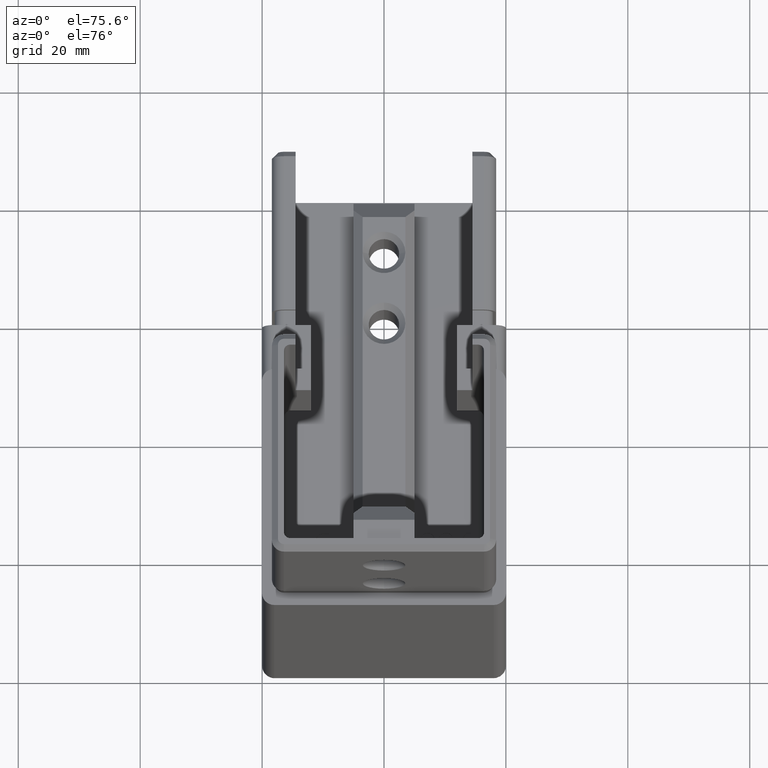
[diagram: clean part render]
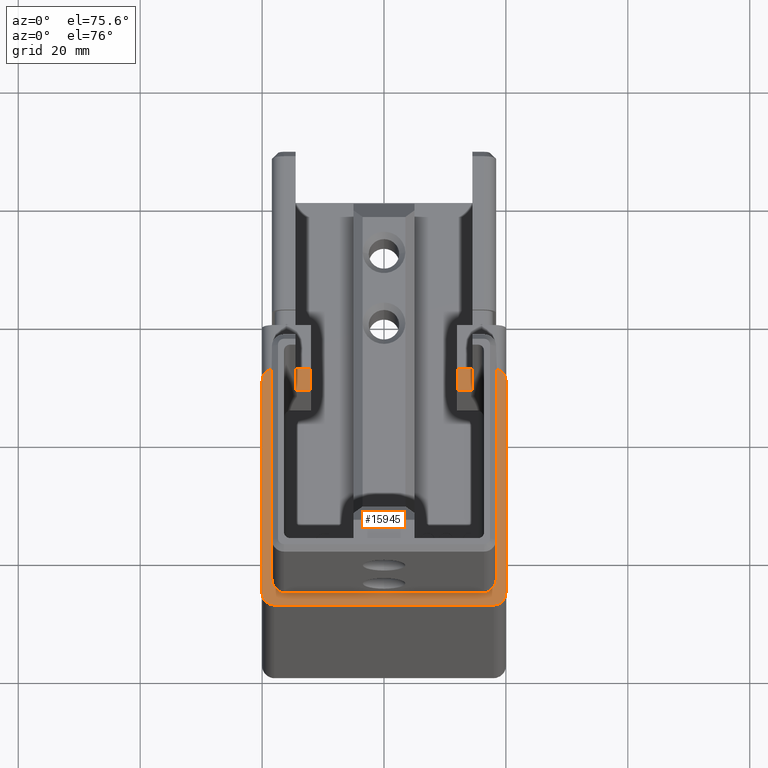
[diagram: same view with one face highlighted and labeled with its STEP entity id]
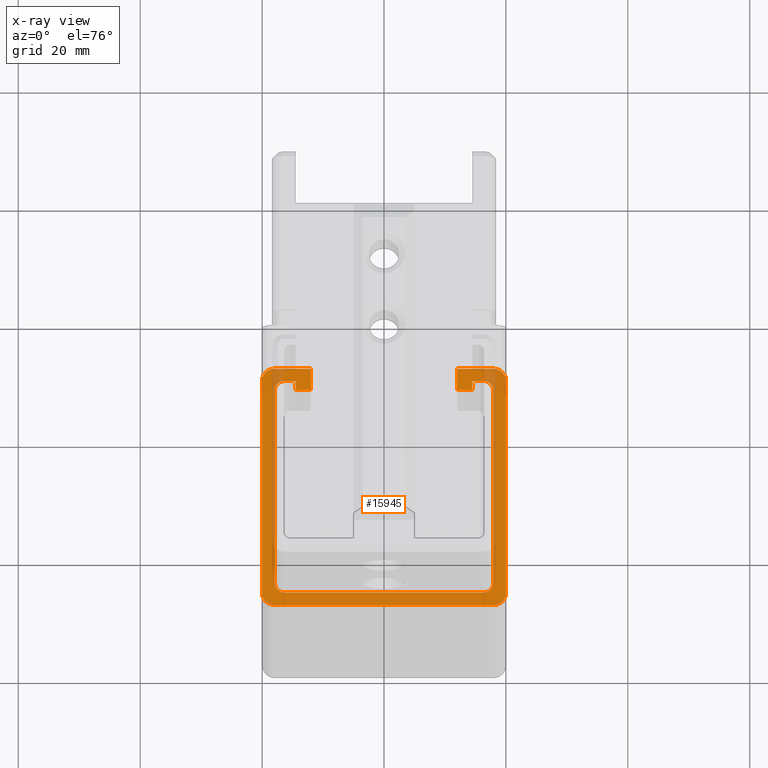
[diagram: x-ray of the same camera — body ghosted, the highlighted face saturated]
A machine part, auxiliary view. The second image highlights one B-rep face of the part: STEP entity #15945.
The next image is the same camera in x-ray: the body ghosted, the highlighted face saturated — about 15% of this face is hidden behind the body in this view.
In plain terms, the highlighted planar face has unit normal (0, 0, 1).
Its self-contained STEP definition (entity closure, byte-faithful):
#121 = VERTEX_POINT ( 'NONE', #9870 ) ;
#186 = EDGE_CURVE ( 'NONE', #2259, #2257, #16872, .T. ) ;
#294 = CARTESIAN_POINT ( 'NONE',  ( 12.00000000000000000, 36.40000000000000568, 50.00000000000000000 ) ) ;
#299 = CARTESIAN_POINT ( 'NONE',  ( 16.39999999999999147, 2.099999999999990763, 50.00000000000000000 ) ) ;
#374 = DIRECTION ( 'NONE',  ( -1.057758217059029101E-16, 1.000000000000000000, -0.000000000000000000 ) ) ;
#417 = CIRCLE ( 'NONE', #15226, 1.500000000000001332 ) ;
#445 = CIRCLE ( 'NONE', #5478, 1.499999999999999112 ) ;
#559 = VERTEX_POINT ( 'NONE', #5043 ) ;
#603 = AXIS2_PLACEMENT_3D ( 'NONE', #16903, #12175, #16712 ) ;
#1181 = LINE ( 'NONE', #3167, #16879 ) ;
#1207 = EDGE_CURVE ( 'NONE', #4398, #121, #19279, .T. ) ;
#1214 = EDGE_CURVE ( 'NONE', #9338, #19406, #18059, .T. ) ;
#1235 = EDGE_LOOP ( 'NONE', ( #16988, #9040, #5881, #14788, #17346, #7116, #2691, #18734, #4999, #9705, #18203, #16992, #19858, #20315, #11923, #16384, #20126, #4720, #19356, #19118, #4527, #13531, #3635, #9872 ) ) ;
#1861 = VECTOR ( 'NONE', #18818, 1000.000000000000000 ) ;
#1947 = EDGE_CURVE ( 'NONE', #14661, #18998, #16838, .T. ) ;
#2026 = LINE ( 'NONE', #14689, #12054 ) ;
#2148 = VECTOR ( 'NONE', #14569, 1000.000000000000000 ) ;
#2165 = CARTESIAN_POINT ( 'NONE',  ( -16.39999999999998437, 2.099999999999985434, 50.00000000000000000 ) ) ;
#2169 = VECTOR ( 'NONE', #15278, 1000.000000000000000 ) ;
#2257 = VERTEX_POINT ( 'NONE', #6339 ) ;
#2259 = VERTEX_POINT ( 'NONE', #9778 ) ;
#2313 = VERTEX_POINT ( 'NONE', #294 ) ;
#2352 = LINE ( 'NONE', #8226, #12637 ) ;
#2426 = DIRECTION ( 'NONE',  ( -1.000000000000000000, 0.000000000000000000, 0.000000000000000000 ) ) ;
#2561 = CARTESIAN_POINT ( 'NONE',  ( 18.00000000000000711, 1.999999999999995781, 50.00000000000000000 ) ) ;
#2691 = ORIENTED_EDGE ( 'NONE', *, *, #17429, .T. ) ;
#2731 = CARTESIAN_POINT ( 'NONE',  ( -16.40000000000000568, 37.89999999999999147, 50.00000000000000000 ) ) ;
#2779 = CARTESIAN_POINT ( 'NONE',  ( -20.00000000000000711, 1.999999999999995781, 50.00000000000000000 ) ) ;
#2873 = LINE ( 'NONE', #9060, #1861 ) ;
#3167 = CARTESIAN_POINT ( 'NONE',  ( 14.49999999999999822, 38.39999999999999147, 50.00000000000000000 ) ) ;
#3292 = EDGE_CURVE ( 'NONE', #16142, #559, #9715, .T. ) ;
#3534 = VERTEX_POINT ( 'NONE', #9532 ) ;
#3555 = PLANE ( 'NONE',  #17592 ) ;
#3613 = DIRECTION ( 'NONE',  ( -1.000000000000000000, -1.586637325588544144E-16, -0.000000000000000000 ) ) ;
#3635 = ORIENTED_EDGE ( 'NONE', *, *, #9099, .T. ) ;
#3665 = CARTESIAN_POINT ( 'NONE',  ( -18.00000000000000711, 1.999999999999995781, 50.00000000000000000 ) ) ;
#3800 = VERTEX_POINT ( 'NONE', #14504 ) ;
#3971 = CARTESIAN_POINT ( 'NONE',  ( 0.000000000000000000, 37.89999999999999147, 50.00000000000000000 ) ) ;
#3982 = CARTESIAN_POINT ( 'NONE',  ( 18.00000000000000711, -1.089372355467298638E-14, 50.00000000000000000 ) ) ;
#4051 = DIRECTION ( 'NONE',  ( -1.000000000000000000, 0.000000000000000000, 0.000000000000000000 ) ) ;
#4123 = DIRECTION ( 'NONE',  ( 1.000000000000000000, 0.000000000000000000, 0.000000000000000000 ) ) ;
#4273 = CARTESIAN_POINT ( 'NONE',  ( 12.00000000000000000, 40.00000000000000711, 50.00000000000000000 ) ) ;
#4282 = CARTESIAN_POINT ( 'NONE',  ( -20.00000000000000355, 1.999999999999995781, 50.00000000000000000 ) ) ;
#4398 = VERTEX_POINT ( 'NONE', #15311 ) ;
#4527 = ORIENTED_EDGE ( 'NONE', *, *, #1207, .T. ) ;
#4573 = VERTEX_POINT ( 'NONE', #6482 ) ;
#4582 = CARTESIAN_POINT ( 'NONE',  ( 12.00000000000000000, 40.00000000000000711, 50.00000000000000000 ) ) ;
#4591 = DIRECTION ( 'NONE',  ( 8.673617379884058152E-16, -1.000000000000000000, 0.000000000000000000 ) ) ;
#4611 = CARTESIAN_POINT ( 'NONE',  ( 17.90000000000000568, 36.39999999999999147, 50.00000000000000000 ) ) ;
#4720 = ORIENTED_EDGE ( 'NONE', *, *, #17054, .T. ) ;
#4861 = VECTOR ( 'NONE', #19914, 1000.000000000000000 ) ;
#4906 = FACE_OUTER_BOUND ( 'NONE', #1235, .T. ) ;
#4999 = ORIENTED_EDGE ( 'NONE', *, *, #13468, .T. ) ;
#5024 = DIRECTION ( 'NONE',  ( 0.000000000000000000, 0.000000000000000000, 1.000000000000000000 ) ) ;
#5043 = CARTESIAN_POINT ( 'NONE',  ( -18.00000000000000711, -1.089372355467298638E-14, 50.00000000000000000 ) ) ;
#5056 = CARTESIAN_POINT ( 'NONE',  ( 15.40000000000000036, 35.39999999999999858, 50.00000000000000000 ) ) ;
#5061 = CARTESIAN_POINT ( 'NONE',  ( -16.40000000000000568, 36.39999999999999147, 50.00000000000000000 ) ) ;
#5106 = LINE ( 'NONE', #299, #17107 ) ;
#5151 = CIRCLE ( 'NONE', #18418, 2.000000000000001776 ) ;
#5314 = EDGE_CURVE ( 'NONE', #8219, #9338, #19003, .T. ) ;
#5354 = LINE ( 'NONE', #12925, #2148 ) ;
#5478 = AXIS2_PLACEMENT_3D ( 'NONE', #13443, #14686, #14894 ) ;
#5765 = DIRECTION ( 'NONE',  ( -9.637352644315591545E-17, 1.000000000000000000, 0.000000000000000000 ) ) ;
#5803 = AXIS2_PLACEMENT_3D ( 'NONE', #10852, #15292, #9074 ) ;
#5881 = ORIENTED_EDGE ( 'NONE', *, *, #1214, .T. ) ;
#5906 = DIRECTION ( 'NONE',  ( -1.000000000000000000, 0.000000000000000000, -0.000000000000000000 ) ) ;
#5938 = CARTESIAN_POINT ( 'NONE',  ( 17.90000000000000568, 3.600000000000005862, 50.00000000000000000 ) ) ;
#5963 = CARTESIAN_POINT ( 'NONE',  ( -18.00000000000000355, 40.00000000000000711, 50.00000000000000000 ) ) ;
#6322 = CIRCLE ( 'NONE', #5803, 1.500000000000001332 ) ;
#6339 = CARTESIAN_POINT ( 'NONE',  ( -20.00000000000000000, 38.00000000000000711, 50.00000000000000000 ) ) ;
#6343 = LINE ( 'NONE', #18285, #2169 ) ;
#6482 = CARTESIAN_POINT ( 'NONE',  ( 18.00000000000000711, -6.938893903907228378E-15, 50.00000000000000000 ) ) ;
#7116 = ORIENTED_EDGE ( 'NONE', *, *, #13905, .T. ) ;
#7294 = VECTOR ( 'NONE', #374, 1000.000000000000000 ) ;
#7983 = VERTEX_POINT ( 'NONE', #8956 ) ;
#8098 = AXIS2_PLACEMENT_3D ( 'NONE', #15123, #8777, #4123 ) ;
#8173 = DIRECTION ( 'NONE',  ( -1.000000000000000000, 0.000000000000000000, 0.000000000000000000 ) ) ;
#8219 = VERTEX_POINT ( 'NONE', #16601 ) ;
#8226 = CARTESIAN_POINT ( 'NONE',  ( -12.00000000000000000, 40.00000000000000711, 50.00000000000000000 ) ) ;
#8290 = LINE ( 'NONE', #13330, #17832 ) ;
#8637 = VERTEX_POINT ( 'NONE', #14786 ) ;
#8777 = DIRECTION ( 'NONE',  ( 0.000000000000000000, 0.000000000000000000, 1.000000000000000000 ) ) ;
#8790 = EDGE_CURVE ( 'NONE', #7983, #2259, #17444, .T. ) ;
#8956 = CARTESIAN_POINT ( 'NONE',  ( -12.00000000000000000, 40.00000000000000711, 50.00000000000000000 ) ) ;
#9040 = ORIENTED_EDGE ( 'NONE', *, *, #5314, .T. ) ;
#9060 = CARTESIAN_POINT ( 'NONE',  ( -15.40000000000000036, 36.39999999999999858, 50.00000000000000000 ) ) ;
#9074 = DIRECTION ( 'NONE',  ( 1.000000000000000000, 6.938893903907222067E-15, 0.000000000000000000 ) ) ;
#9099 = EDGE_CURVE ( 'NONE', #14528, #2313, #2026, .T. ) ;
#9259 = LINE ( 'NONE', #2731, #20001 ) ;
#9338 = VERTEX_POINT ( 'NONE', #13649 ) ;
#9532 = CARTESIAN_POINT ( 'NONE',  ( 20.00000000000000355, 1.999999999999995781, 50.00000000000000000 ) ) ;
#9699 = AXIS2_PLACEMENT_3D ( 'NONE', #3665, #5024, #8173 ) ;
#9705 = ORIENTED_EDGE ( 'NONE', *, *, #18649, .T. ) ;
#9715 = CIRCLE ( 'NONE', #9699, 2.000000000000001776 ) ;
#9778 = CARTESIAN_POINT ( 'NONE',  ( -18.00000000000000355, 40.00000000000000711, 50.00000000000000000 ) ) ;
#9799 = DIRECTION ( 'NONE',  ( -0.000000000000000000, -0.000000000000000000, -1.000000000000000000 ) ) ;
#9870 = CARTESIAN_POINT ( 'NONE',  ( 18.00000000000000355, 40.00000000000000711, 50.00000000000000000 ) ) ;
#9872 = ORIENTED_EDGE ( 'NONE', *, *, #17052, .T. ) ;
#10276 = LINE ( 'NONE', #4273, #10524 ) ;
#10524 = VECTOR ( 'NONE', #5906, 1000.000000000000000 ) ;
#10852 = CARTESIAN_POINT ( 'NONE',  ( 16.40000000000000568, 3.599999999999988542, 50.00000000000000000 ) ) ;
#11150 = CARTESIAN_POINT ( 'NONE',  ( 16.39999999999999503, 2.099999999999987210, 50.00000000000000000 ) ) ;
#11739 = CARTESIAN_POINT ( 'NONE',  ( 14.49999999999999822, 36.39999999999999858, 50.00000000000000000 ) ) ;
#11850 = DIRECTION ( 'NONE',  ( 0.000000000000000000, 0.000000000000000000, 1.000000000000000000 ) ) ;
#11923 = ORIENTED_EDGE ( 'NONE', *, *, #186, .T. ) ;
#12054 = VECTOR ( 'NONE', #14472, 1000.000000000000000 ) ;
#12175 = DIRECTION ( 'NONE',  ( -0.000000000000000000, -0.000000000000000000, -1.000000000000000000 ) ) ;
#12578 = VERTEX_POINT ( 'NONE', #5938 ) ;
#12637 = VECTOR ( 'NONE', #15751, 1000.000000000000000 ) ;
#12777 = DIRECTION ( 'NONE',  ( -1.000000000000000000, 0.000000000000000000, 0.000000000000000000 ) ) ;
#12855 = EDGE_CURVE ( 'NONE', #2257, #16142, #17358, .T. ) ;
#12912 = CARTESIAN_POINT ( 'NONE',  ( -17.89999999999999858, 3.599999999999999201, 50.00000000000000000 ) ) ;
#12925 = CARTESIAN_POINT ( 'NONE',  ( -14.50000000000000178, 38.39999999999999147, 50.00000000000000000 ) ) ;
#12948 = LINE ( 'NONE', #17790, #16652 ) ;
#13276 = VECTOR ( 'NONE', #16912, 1000.000000000000000 ) ;
#13330 = CARTESIAN_POINT ( 'NONE',  ( 20.00000000000000000, 38.00000000000000711, 50.00000000000000000 ) ) ;
#13443 = CARTESIAN_POINT ( 'NONE',  ( -16.40000000000000213, 3.599999999999982769, 50.00000000000000000 ) ) ;
#13468 = EDGE_CURVE ( 'NONE', #18998, #8637, #417, .T. ) ;
#13531 = ORIENTED_EDGE ( 'NONE', *, *, #17970, .T. ) ;
#13649 = CARTESIAN_POINT ( 'NONE',  ( 16.40000000000000568, 37.89999999999999147, 50.00000000000000000 ) ) ;
#13664 = VERTEX_POINT ( 'NONE', #2165 ) ;
#13905 = EDGE_CURVE ( 'NONE', #16767, #13664, #5106, .T. ) ;
#13932 = LINE ( 'NONE', #3982, #14181 ) ;
#14102 = AXIS2_PLACEMENT_3D ( 'NONE', #15057, #11850, #4051 ) ;
#14181 = VECTOR ( 'NONE', #16287, 1000.000000000000000 ) ;
#14187 = EDGE_CURVE ( 'NONE', #12578, #16767, #6322, .T. ) ;
#14272 = CARTESIAN_POINT ( 'NONE',  ( -17.90000000000000213, 36.39999999999999147, 50.00000000000000000 ) ) ;
#14344 = DIRECTION ( 'NONE',  ( 0.000000000000000000, 0.000000000000000000, 1.000000000000000000 ) ) ;
#14472 = DIRECTION ( 'NONE',  ( 0.000000000000000000, -1.000000000000000000, 0.000000000000000000 ) ) ;
#14478 = DIRECTION ( 'NONE',  ( 1.000000000000000000, 0.000000000000000000, -0.000000000000000000 ) ) ;
#14504 = CARTESIAN_POINT ( 'NONE',  ( -14.50000000000000178, 37.89999999999999147, 50.00000000000000000 ) ) ;
#14528 = VERTEX_POINT ( 'NONE', #4582 ) ;
#14569 = DIRECTION ( 'NONE',  ( 8.673617379884087734E-16, 1.000000000000000000, -0.000000000000000000 ) ) ;
#14614 = VECTOR ( 'NONE', #17915, 1000.000000000000000 ) ;
#14661 = VERTEX_POINT ( 'NONE', #19409 ) ;
#14686 = DIRECTION ( 'NONE',  ( -0.000000000000000000, -0.000000000000000000, -1.000000000000000000 ) ) ;
#14689 = CARTESIAN_POINT ( 'NONE',  ( 12.00000000000000000, 40.00000000000000711, 50.00000000000000000 ) ) ;
#14786 = CARTESIAN_POINT ( 'NONE',  ( -16.40000000000000568, 37.89999999999999147, 50.00000000000000000 ) ) ;
#14788 = ORIENTED_EDGE ( 'NONE', *, *, #17944, .T. ) ;
#14894 = DIRECTION ( 'NONE',  ( 9.251858538542976955E-15, -1.000000000000000000, 0.000000000000000000 ) ) ;
#15015 = VERTEX_POINT ( 'NONE', #11739 ) ;
#15022 = DIRECTION ( 'NONE',  ( 0.000000000000000000, 0.000000000000000000, 1.000000000000000000 ) ) ;
#15057 = CARTESIAN_POINT ( 'NONE',  ( -18.00000000000000355, 38.00000000000000711, 50.00000000000000000 ) ) ;
#15061 = VERTEX_POINT ( 'NONE', #19453 ) ;
#15123 = CARTESIAN_POINT ( 'NONE',  ( 18.00000000000000355, 38.00000000000000711, 50.00000000000000000 ) ) ;
#15226 = AXIS2_PLACEMENT_3D ( 'NONE', #5061, #9799, #12777 ) ;
#15278 = DIRECTION ( 'NONE',  ( 2.115516434118058695E-16, -1.000000000000000000, -0.000000000000000000 ) ) ;
#15292 = DIRECTION ( 'NONE',  ( -0.000000000000000000, -0.000000000000000000, -1.000000000000000000 ) ) ;
#15311 = CARTESIAN_POINT ( 'NONE',  ( 20.00000000000000355, 38.00000000000000711, 50.00000000000000000 ) ) ;
#15574 = VERTEX_POINT ( 'NONE', #16096 ) ;
#15751 = DIRECTION ( 'NONE',  ( -0.000000000000000000, 1.000000000000000000, 0.000000000000000000 ) ) ;
#15945 = ADVANCED_FACE ( 'NONE', ( #4906 ), #3555, .T. ) ;
#16096 = CARTESIAN_POINT ( 'NONE',  ( -12.00000000000000000, 36.40000000000000568, 50.00000000000000000 ) ) ;
#16142 = VERTEX_POINT ( 'NONE', #2779 ) ;
#16287 = DIRECTION ( 'NONE',  ( 1.000000000000000000, 0.000000000000000000, 0.000000000000000000 ) ) ;
#16384 = ORIENTED_EDGE ( 'NONE', *, *, #12855, .T. ) ;
#16568 = EDGE_CURVE ( 'NONE', #4573, #3534, #5151, .T. ) ;
#16601 = CARTESIAN_POINT ( 'NONE',  ( 14.49999999999999822, 37.89999999999999147, 50.00000000000000000 ) ) ;
#16652 = VECTOR ( 'NONE', #19346, 1000.000000000000000 ) ;
#16712 = DIRECTION ( 'NONE',  ( 0.000000000000000000, 1.000000000000000000, 0.000000000000000000 ) ) ;
#16767 = VERTEX_POINT ( 'NONE', #11150 ) ;
#16838 = LINE ( 'NONE', #12912, #7294 ) ;
#16872 = CIRCLE ( 'NONE', #14102, 2.000000000000001776 ) ;
#16879 = VECTOR ( 'NONE', #4591, 1000.000000000000000 ) ;
#16903 = CARTESIAN_POINT ( 'NONE',  ( 16.40000000000000568, 36.39999999999999147, 50.00000000000000000 ) ) ;
#16912 = DIRECTION ( 'NONE',  ( -1.000000000000000000, 0.000000000000000000, -0.000000000000000000 ) ) ;
#16970 = DIRECTION ( 'NONE',  ( 1.000000000000000000, -0.000000000000000000, -0.000000000000000000 ) ) ;
#16988 = ORIENTED_EDGE ( 'NONE', *, *, #18016, .F. ) ;
#16992 = ORIENTED_EDGE ( 'NONE', *, *, #19754, .T. ) ;
#17052 = EDGE_CURVE ( 'NONE', #2313, #15015, #12948, .T. ) ;
#17054 = EDGE_CURVE ( 'NONE', #559, #4573, #13932, .T. ) ;
#17107 = VECTOR ( 'NONE', #3613, 1000.000000000000000 ) ;
#17346 = ORIENTED_EDGE ( 'NONE', *, *, #14187, .T. ) ;
#17358 = LINE ( 'NONE', #4282, #4861 ) ;
#17429 = EDGE_CURVE ( 'NONE', #13664, #14661, #445, .T. ) ;
#17444 = LINE ( 'NONE', #5963, #13276 ) ;
#17592 = AXIS2_PLACEMENT_3D ( 'NONE', #5056, #14344, #14478 ) ;
#17790 = CARTESIAN_POINT ( 'NONE',  ( 12.00000000000000000, 36.40000000000000568, 50.00000000000000000 ) ) ;
#17832 = VECTOR ( 'NONE', #5765, 1000.000000000000000 ) ;
#17915 = DIRECTION ( 'NONE',  ( 1.000000000000000000, -0.000000000000000000, -0.000000000000000000 ) ) ;
#17944 = EDGE_CURVE ( 'NONE', #19406, #12578, #6343, .T. ) ;
#17970 = EDGE_CURVE ( 'NONE', #121, #14528, #10276, .T. ) ;
#18016 = EDGE_CURVE ( 'NONE', #8219, #15015, #1181, .T. ) ;
#18059 = CIRCLE ( 'NONE', #603, 1.500000000000001332 ) ;
#18203 = ORIENTED_EDGE ( 'NONE', *, *, #18348, .F. ) ;
#18285 = CARTESIAN_POINT ( 'NONE',  ( 17.89999999999999858, 36.39999999999999147, 50.00000000000000000 ) ) ;
#18348 = EDGE_CURVE ( 'NONE', #15061, #3800, #5354, .T. ) ;
#18418 = AXIS2_PLACEMENT_3D ( 'NONE', #2561, #15022, #2426 ) ;
#18463 = EDGE_CURVE ( 'NONE', #3534, #4398, #8290, .T. ) ;
#18649 = EDGE_CURVE ( 'NONE', #8637, #3800, #9259, .T. ) ;
#18734 = ORIENTED_EDGE ( 'NONE', *, *, #1947, .T. ) ;
#18818 = DIRECTION ( 'NONE',  ( 1.000000000000000000, 2.040851148208008393E-15, 0.000000000000000000 ) ) ;
#18998 = VERTEX_POINT ( 'NONE', #14272 ) ;
#19003 = LINE ( 'NONE', #3971, #14614 ) ;
#19118 = ORIENTED_EDGE ( 'NONE', *, *, #18463, .T. ) ;
#19279 = CIRCLE ( 'NONE', #8098, 2.000000000000001776 ) ;
#19346 = DIRECTION ( 'NONE',  ( 1.000000000000000000, -4.081702296416016786E-15, 0.000000000000000000 ) ) ;
#19356 = ORIENTED_EDGE ( 'NONE', *, *, #16568, .T. ) ;
#19406 = VERTEX_POINT ( 'NONE', #4611 ) ;
#19409 = CARTESIAN_POINT ( 'NONE',  ( -17.89999999999999858, 3.599999999999994760, 50.00000000000000000 ) ) ;
#19453 = CARTESIAN_POINT ( 'NONE',  ( -14.50000000000000178, 36.39999999999999858, 50.00000000000000000 ) ) ;
#19754 = EDGE_CURVE ( 'NONE', #15061, #15574, #2873, .T. ) ;
#19858 = ORIENTED_EDGE ( 'NONE', *, *, #19966, .T. ) ;
#19914 = DIRECTION ( 'NONE',  ( -9.637352644315591545E-17, -1.000000000000000000, -0.000000000000000000 ) ) ;
#19966 = EDGE_CURVE ( 'NONE', #15574, #7983, #2352, .T. ) ;
#20001 = VECTOR ( 'NONE', #16970, 1000.000000000000000 ) ;
#20126 = ORIENTED_EDGE ( 'NONE', *, *, #3292, .T. ) ;
#20315 = ORIENTED_EDGE ( 'NONE', *, *, #8790, .T. ) ;